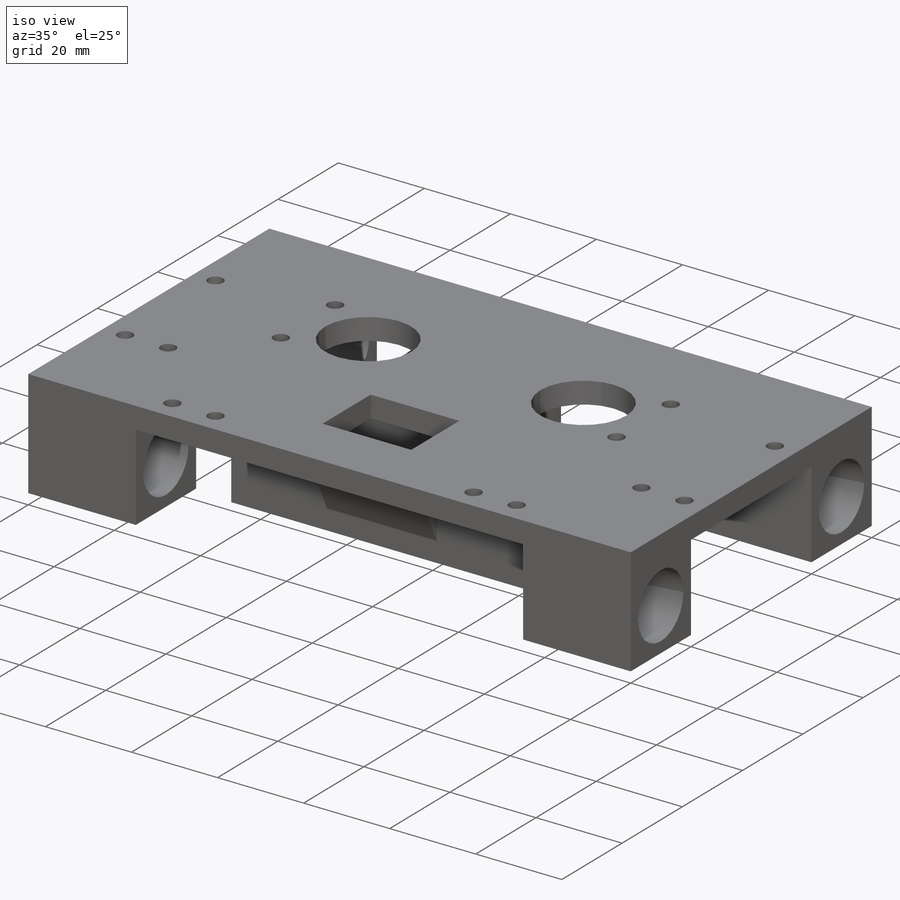
[diagram: iso view]
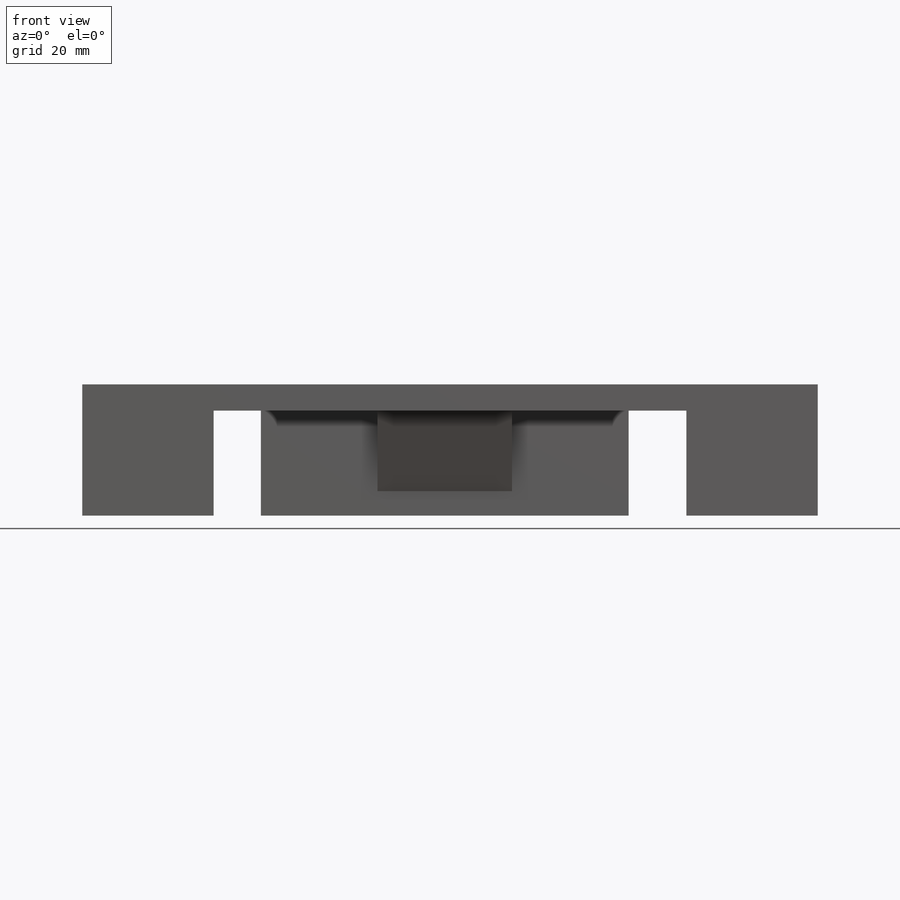
[diagram: front view]
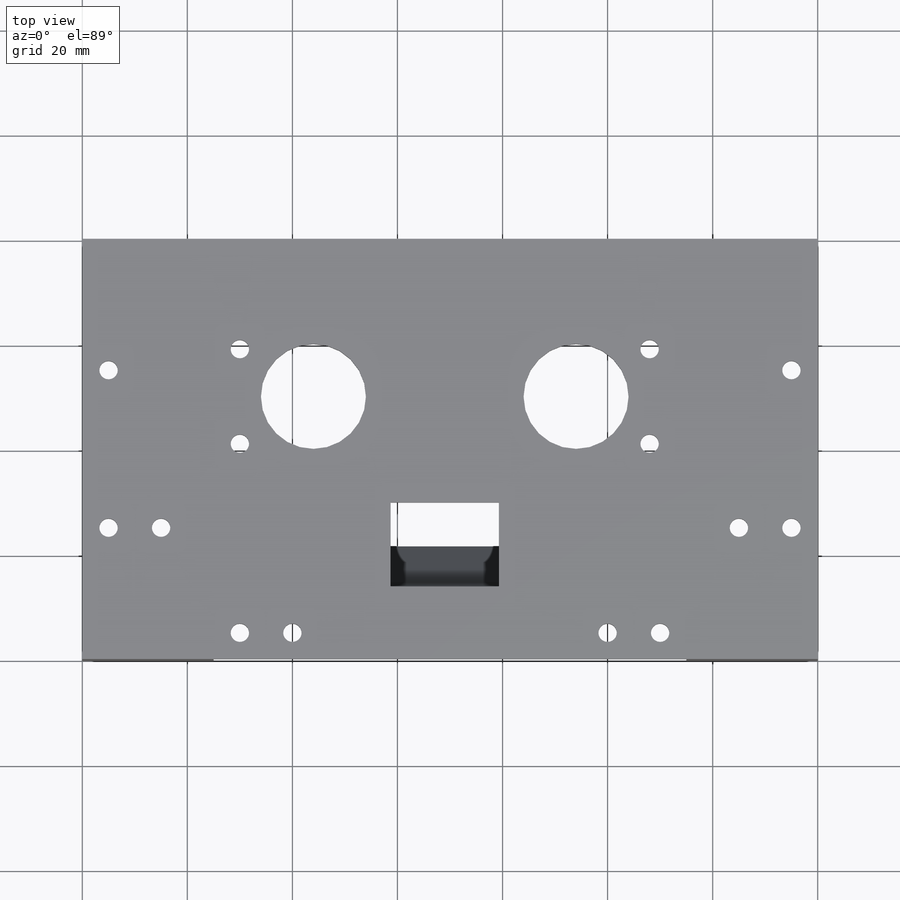
[diagram: top view]
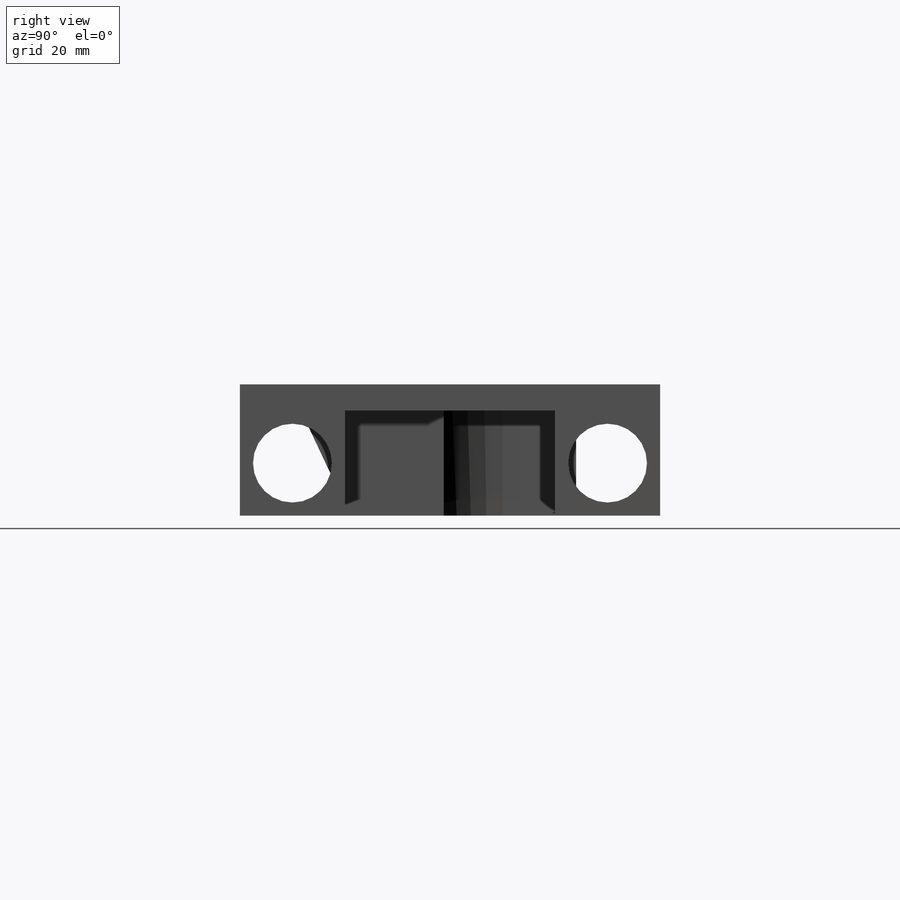
[diagram: right view]
SOLIDWORKS PART (.sldprt)
format: sldprt  version: not decoded by parser v0  size: 620,544 bytes
history: native  units: mm
features: sketch x12, cut_extrude x7, extrude x4, fillet x3, chamfer x2, material x1 (+12 scaffold rows collapsed)
feature tree (41):
  scaffold x12  (default folders/planes/origin — collapsed)
  material  "ABS PC"
  sketch  "Sketch1"  dims[D1=80.0mm D2=140.0mm]
  extrude  "Boss-Extrude1"  Depth=5mm
  sketch  "Sketch2"  dims[c1.D5=~4.544443mm c1.D6=~4.544443mm c1.D7=~4.544443mm c1.D9=3.5mm c1.D1=3.5mm c1.D2=3.5mm c1.D3=3.5mm c1.D4=3.5mm c2.D5=20.0mm c2.D6=20.0mm c2.D7=20.0mm c2.D8=~10.539408mm c2.D1=71.0mm c2.D2=30.0mm c2.D3=33.5mm c2.D4=15.0mm c3.D5=3.5mm c3.D6=3.5mm c3.D7=6.0mm c3.D8=6.0mm c3.D1=32.0mm c3.D2=78.0mm c3.D3=18.0mm c3.D4=21.0mm c4.D6=14.0mm c4.D7=9.0mm c4.D8=14.0mm]
  cut_extrude  "Cut-Extrude1"  [1 undecoded]
  sketch  "Sketch3"  dims[D1=25.0mm D2=20.0mm D3=0.0mm D4=0.0mm]
  extrude  "Boss-Extrude2"  Depth=20mm
  sketch  "Sketch4"  dims[D4=15.0mm D1=10.0mm D2=10.0mm D3=10.0mm]
  cut_extrude  "Cut-Extrude2"  [1 undecoded]
  sketch  "Sketch5"  dims[c1.D1=20.0mm c1.D2=20.0mm c1.D3=20.0mm c2.D1=~15.681036mm c2.D4=~14.778826mm c2.D6=18.0mm c2.D2=18.0mm c3.D1=7.0mm c3.D2=5.0mm c3.D3=34.0mm c4.D2=10.0mm c4.D4=20.0mm c4.D1=8.0mm c5.D2=25.0mm c5.D3=8.0mm c5.D4=15.0mm c5.D5=20.0mm c5.D6=5.0mm c6.D2=10.0mm c6.D4=5.0mm c6.D3=20.0mm c6.D6=10.0mm c7.D2=10.0mm c7.D1=14.0mm c8.D2=10.0mm c8.D3=20.0mm]
  extrude  "Boss-Extrude3"  Depth=20mm
  sketch  "Sketch6"  dims[c1.D4=~49.652441mm c1.D5=~50.266385mm c1.D1=2.0mm c1.D2=3.0mm c1.D3=3.0mm c2.D4=3.0mm c2.D5=3.0mm c2.D6=3.0mm c2.D7=3.0mm c2.D8=3.0mm]
  cut_extrude  "Cut-Extrude3"  [1 undecoded]
  sketch  "Sketch11"
  chamfer  "Chamfer2"  Distance=2.5mm Angle=45deg
  fillet  "Fillet1"  Radius=10mm
  fillet  "Fillet2"  Radius=2.5mm
  chamfer  "Chamfer3"  Distance=0.5mm Angle=33deg
  sketch  "Sketch10"  dims[D1=16.0mm D2=20.6mm D3=8.0mm D4=10.3mm]
  cut_extrude  "Cut-Extrude4"  [1 undecoded]
  sketch  "Sketch12"  dims[D1=2.5mm D2=2.5mm D3=2.5mm]
  extrude  "Boss-Extrude4"  [1 undecoded]
  sketch  "Sketch13"  dims[D1=3.0mm]
  cut_extrude  "Cut-Extrude8"  Depth=2.5mm
  fillet  "Fillet4"  Radius=10mm
  sketch  "Sketch14"  dims[c1.D1=~20.988413mm c2.D1=~7.547398deg c3.D1=2.0mm]
  cut_extrude  "Cut-Extrude9"  [1 undecoded]
  sketch  "Sketch15"  dims[c1.D1=3.5mm c1.D2=3.5mm c1.D3=3.5mm c1.D4=3.5mm c1.D5=3.5mm c1.D6=3.5mm c1.D7=3.5mm c1.D8=3.5mm c1.D9=3.5mm c1.D10=3.5mm c1.D11=3.5mm c1.D12=3.5mm c1.D13=3.5mm c1.D14=3.5mm c2.D11=3.5mm c2.D12=3.5mm c2.D13=3.5mm c3.D11=3.5mm c3.D14=3.5mm c3.D13=3.5mm c3.D2=5.0mm c3.D3=5.0mm c3.D4=5.0mm c3.D5=30.0mm c3.D6=5.0mm c3.D7=5.0mm c3.D8=10.0mm c3.D9=10.0mm c3.D10=5.0mm c4.D11=5.0mm c4.D12=5.0mm c4.D13=3.5mm c5.D11=8.0mm c5.D12=6.0mm c5.D13=52.75mm c6.D11=8.0mm c6.D14=1.0mm c6.D13=53.0mm c6.D15=10.0mm c6.D16=10.0mm]
  cut_extrude  "Cut-Extrude10"  [1 undecoded]
decode coverage: 20 of 28 modeling features carry decoded parameters
note: ~ marks probable driven/reference dimensions
note: 7 parameter values undecoded
summary: no parameter record found for 7 features
note: suppression state not decoded; provenance and decode notes live in map.json
